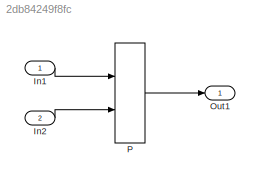
MODEL slx_2db84249f8fc
KIND model
CONFIG AbsTol = auto
CONFIG EnableMultiTasking = off
CONFIG FixedStep = auto
CONFIG MaxStep = auto
CONFIG MinStep = auto
CONFIG RelTol = 1e-3
CONFIG SampleTimeConstraint = Unconstrained
CONFIG Solver = FixedStepDiscrete
CONFIG SolverName = FixedStepDiscrete
CONFIG StartTime = 0.0
CONFIG StopTime = 10.0
BLOCK [Inport] In1
  IconDisplay = Port number
  OutDataTypeStr = double
  PortDimensions = [3 3]
BLOCK [Inport] In2
  IconDisplay = Port number
  OutDataTypeStr = double
  Port = 2
  PortDimensions = [3 2]
BLOCK [Outport] Out1
  IconDisplay = Port number
BLOCK [Assignment] P
  DiagnosticForDimensions = Warning
  IndexMode = Zero-based
  IndexOptions = Assign all,Index vector (dialog)
  Indices = [],[1,2]
  NumberOfDimensions = 2
  OutputSizes = ,
  Ports = [2, 1]
LINE In1:1 -> P:1
LINE In2:1 -> P:2
LINE P:1 -> Out1:1
